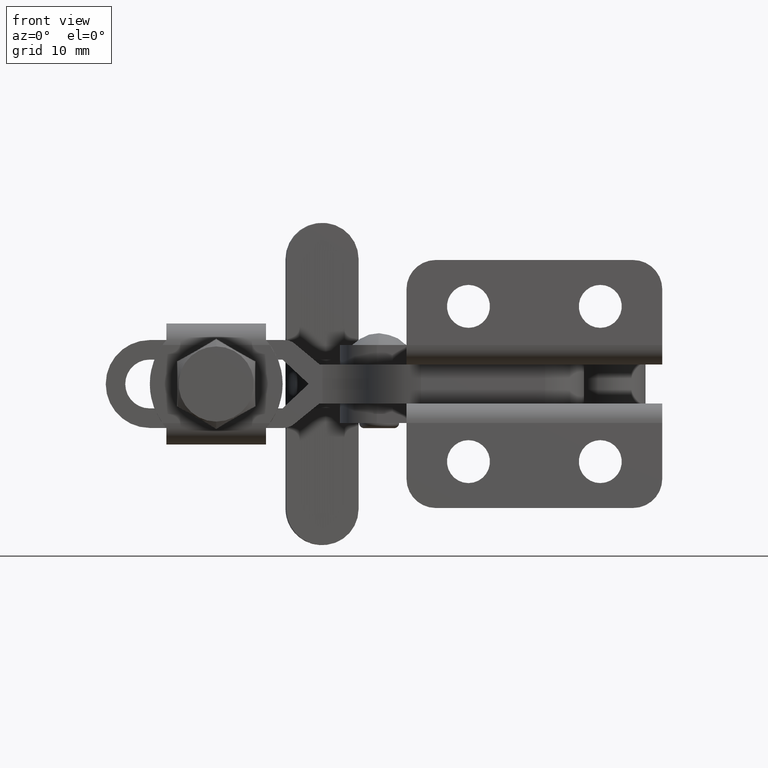
[diagram: clean part render]
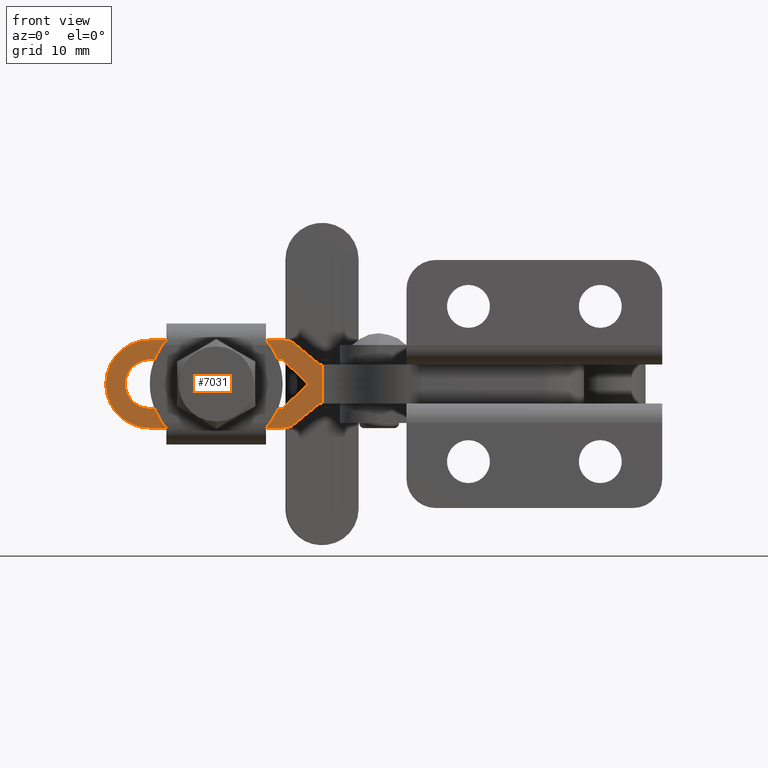
[diagram: same view with one face highlighted and labeled with its STEP entity id]
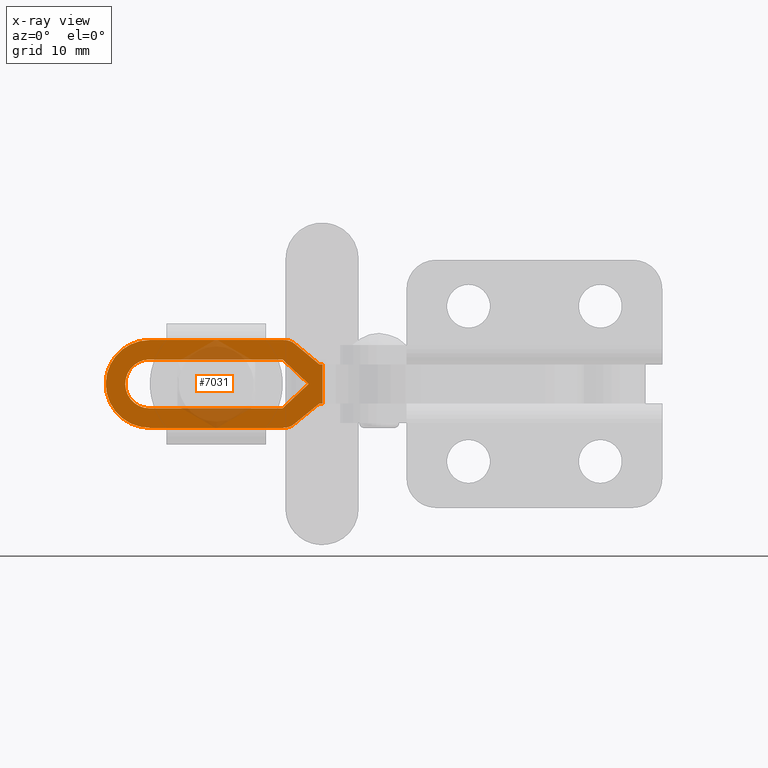
[diagram: x-ray of the same camera — body ghosted, the highlighted face saturated]
A machine part, front view. The second image highlights one B-rep face of the part: STEP entity #7031.
The next image is the same camera in x-ray: the body ghosted, the highlighted face saturated — about 15% of this face is hidden behind the body in this view.
In plain terms, the highlighted planar face has unit normal (-0, 1, -0).
Its self-contained STEP definition (entity closure, byte-faithful):
#75 = ORIENTED_EDGE ( 'NONE', *, *, #8553, .T. ) ;
#152 = CARTESIAN_POINT ( 'NONE',  ( -33.22022048219763200, 17.20000000000001400, -1.999999999999965800 ) ) ;
#219 = ORIENTED_EDGE ( 'NONE', *, *, #8522, .T. ) ;
#238 = VERTEX_POINT ( 'NONE', #7492 ) ;
#334 = DIRECTION ( 'NONE',  ( -0.7310552682428460600, -7.103958693483646300E-019, -0.6823182503600356800 ) ) ;
#339 = VERTEX_POINT ( 'NONE', #1470 ) ;
#422 = AXIS2_PLACEMENT_3D ( 'NONE', #9383, #6340, #1681 ) ;
#426 = ORIENTED_EDGE ( 'NONE', *, *, #2634, .F. ) ;
#460 = VECTOR ( 'NONE', #7899, 1000.000000000000000 ) ;
#756 = CARTESIAN_POINT ( 'NONE',  ( -49.49794774322469200, 17.20000000000001700, -6.499999999999946700 ) ) ;
#849 = AXIS2_PLACEMENT_3D ( 'NONE', #2750, #7277, #5228 ) ;
#970 = VERTEX_POINT ( 'NONE', #152 ) ;
#1071 = DIRECTION ( 'NONE',  ( -1.172110456741039200E-019, 1.000000000000000000, -9.155670635842134000E-019 ) ) ;
#1083 = CARTESIAN_POINT ( 'NONE',  ( -34.59318002014801200, 17.20000000000001400, 2.071026897436111900 ) ) ;
#1229 = DIRECTION ( 'NONE',  ( -1.172110456741039200E-019, 1.000000000000000000, -9.155670635842134000E-019 ) ) ;
#1428 = VERTEX_POINT ( 'NONE', #6812 ) ;
#1470 = CARTESIAN_POINT ( 'NONE',  ( -49.49794774322467800, 17.20000000000001400, 2.500000000000049300 ) ) ;
#1582 = CARTESIAN_POINT ( 'NONE',  ( -35.78054295658291300, 17.20000000000001400, 2.500000000000033800 ) ) ;
#1594 = LINE ( 'NONE', #7835, #5393 ) ;
#1638 = VERTEX_POINT ( 'NONE', #6879 ) ;
#1681 = DIRECTION ( 'NONE',  ( 1.000000000000000000, 1.172110456741039200E-019, -9.314502098102201200E-016 ) ) ;
#1686 = ORIENTED_EDGE ( 'NONE', *, *, #8056, .F. ) ;
#1728 = VECTOR ( 'NONE', #4244, 1000.000000000000000 ) ;
#1792 = EDGE_CURVE ( 'NONE', #3886, #6012, #3813, .T. ) ;
#1816 = CIRCLE ( 'NONE', #849, 4.499999999999997300 ) ;
#1873 = AXIS2_PLACEMENT_3D ( 'NONE', #3401, #1071, #3333 ) ;
#1918 = CARTESIAN_POINT ( 'NONE',  ( -51.99794774322468500, 17.20000000000001400, -1.999999999999946700 ) ) ;
#1956 = FACE_OUTER_BOUND ( 'NONE', #4525, .T. ) ;
#1970 = CARTESIAN_POINT ( 'NONE',  ( -49.49794774322468500, 17.20000000000001400, -4.499999999999949400 ) ) ;
#2004 = CARTESIAN_POINT ( 'NONE',  ( -49.49794774322468500, 17.20000000000001400, -4.499999999999949400 ) ) ;
#2031 = DIRECTION ( 'NONE',  ( -0.7756134828186288500, -6.688238573317455200E-019, -0.6312081473412368700 ) ) ;
#2224 = LINE ( 'NONE', #2498, #9710 ) ;
#2498 = CARTESIAN_POINT ( 'NONE',  ( -33.22022048219763200, 17.20000000000001400, -1.999999999999968900 ) ) ;
#2634 = EDGE_CURVE ( 'NONE', #3188, #2729, #7141, .T. ) ;
#2690 = CIRCLE ( 'NONE', #5531, 1.700000000000000200 ) ;
#2729 = VERTEX_POINT ( 'NONE', #8509 ) ;
#2750 = CARTESIAN_POINT ( 'NONE',  ( -49.49794774322468500, 17.20000000000001400, -1.999999999999948900 ) ) ;
#2767 = CARTESIAN_POINT ( 'NONE',  ( -49.49794774322468500, 17.20000000000001400, 0.5000000000000516300 ) ) ;
#2856 = EDGE_CURVE ( 'NONE', #5954, #5364, #1816, .T. ) ;
#2900 = CARTESIAN_POINT ( 'NONE',  ( -31.79794748430731500, 17.20000000000000600, 22.50000000000003900 ) ) ;
#2904 = EDGE_CURVE ( 'NONE', #238, #1428, #5734, .T. ) ;
#2980 = EDGE_CURVE ( 'NONE', #5908, #8131, #2690, .T. ) ;
#2984 = LINE ( 'NONE', #5378, #5033 ) ;
#3009 = CARTESIAN_POINT ( 'NONE',  ( -32.10794774322491200, 17.20000000000001400, 2.645453300864630800E-014 ) ) ;
#3026 = CARTESIAN_POINT ( 'NONE',  ( -35.72320158200935900, 17.20000000000001400, 0.8009673438212233700 ) ) ;
#3188 = VERTEX_POINT ( 'NONE', #8109 ) ;
#3235 = PLANE ( 'NONE',  #422 ) ;
#3241 = VECTOR ( 'NONE', #334, 1000.000000000000100 ) ;
#3275 = DIRECTION ( 'NONE',  ( -1.000000000000000000, -1.172110456741039200E-019, 1.059414974157814300E-015 ) ) ;
#3333 = DIRECTION ( 'NONE',  ( 1.000000000000000000, 0.0000000000000000000, -1.020425574104004000E-015 ) ) ;
#3374 = CIRCLE ( 'NONE', #4900, 4.499999999999997300 ) ;
#3375 = EDGE_CURVE ( 'NONE', #8131, #1638, #7489, .T. ) ;
#3401 = CARTESIAN_POINT ( 'NONE',  ( -35.78054295658292700, 17.20000000000001400, -4.799999999999960700 ) ) ;
#3428 = ORIENTED_EDGE ( 'NONE', *, *, #2904, .F. ) ;
#3672 = DIRECTION ( 'NONE',  ( -1.374065431884251400E-015, -9.155670635842132000E-019, -1.000000000000000000 ) ) ;
#3741 = CIRCLE ( 'NONE', #8651, 2.500000000000002200 ) ;
#3802 = VERTEX_POINT ( 'NONE', #7388 ) ;
#3813 = LINE ( 'NONE', #1970, #1728 ) ;
#3862 = CARTESIAN_POINT ( 'NONE',  ( -4.997947743224907300, 17.20000000000001400, -1.301042606982605300E-015 ) ) ;
#3886 = VERTEX_POINT ( 'NONE', #6962 ) ;
#3950 = DIRECTION ( 'NONE',  ( -1.000000000000000000, -1.172110456741039200E-019, 1.247603939863101600E-015 ) ) ;
#4063 = EDGE_CURVE ( 'NONE', #339, #5908, #4578, .T. ) ;
#4085 = ORIENTED_EDGE ( 'NONE', *, *, #5922, .F. ) ;
#4090 = CARTESIAN_POINT ( 'NONE',  ( -49.49794774322468500, 17.20000000000001400, -1.999999999999948900 ) ) ;
#4179 = CARTESIAN_POINT ( 'NONE',  ( -49.49794774322468500, 17.20000000000001400, -1.999999999999948900 ) ) ;
#4244 = DIRECTION ( 'NONE',  ( -1.000000000000000000, -1.172110456741039200E-019, 1.122791881750993200E-015 ) ) ;
#4263 = ORIENTED_EDGE ( 'NONE', *, *, #2980, .F. ) ;
#4388 = VERTEX_POINT ( 'NONE', #1918 ) ;
#4525 = EDGE_LOOP ( 'NONE', ( #9342, #4263, #7834, #1686, #5310, #4085, #3428, #4611, #8823, #426, #9538 ) ) ;
#4532 = VECTOR ( 'NONE', #8079, 1000.000000000000000 ) ;
#4578 = LINE ( 'NONE', #6981, #460 ) ;
#4611 = ORIENTED_EDGE ( 'NONE', *, *, #6843, .F. ) ;
#4761 = DIRECTION ( 'NONE',  ( -1.172110456741039200E-019, 1.000000000000000000, -9.155670635842134000E-019 ) ) ;
#4786 = VERTEX_POINT ( 'NONE', #4793 ) ;
#4793 = CARTESIAN_POINT ( 'NONE',  ( -35.89879191076907000, 17.20000000000001400, 0.5000000000000350800 ) ) ;
#4867 = DIRECTION ( 'NONE',  ( 1.000000000000000000, 0.0000000000000000000, -9.637352644315600700E-016 ) ) ;
#4900 = AXIS2_PLACEMENT_3D ( 'NONE', #4090, #9457, #4867 ) ;
#4972 = DIRECTION ( 'NONE',  ( 1.000000000000000000, 0.0000000000000000000, -8.673617379884027600E-016 ) ) ;
#5033 = VECTOR ( 'NONE', #3275, 1000.000000000000000 ) ;
#5113 = EDGE_CURVE ( 'NONE', #1638, #3188, #8655, .T. ) ;
#5196 = ORIENTED_EDGE ( 'NONE', *, *, #7048, .T. ) ;
#5228 = DIRECTION ( 'NONE',  ( 1.000000000000000000, 0.0000000000000000000, -9.637352644315600700E-016 ) ) ;
#5264 = VECTOR ( 'NONE', #2031, 1000.000000000000200 ) ;
#5308 = LINE ( 'NONE', #9613, #3241 ) ;
#5310 = ORIENTED_EDGE ( 'NONE', *, *, #2856, .F. ) ;
#5364 = VERTEX_POINT ( 'NONE', #5694 ) ;
#5370 = VECTOR ( 'NONE', #3672, 1000.000000000000000 ) ;
#5378 = CARTESIAN_POINT ( 'NONE',  ( -4.997947743224910900, 17.20000000000001400, -4.000000000000001800 ) ) ;
#5393 = VECTOR ( 'NONE', #3950, 1000.000000000000000 ) ;
#5430 = EDGE_CURVE ( 'NONE', #2729, #3802, #2984, .T. ) ;
#5454 = CARTESIAN_POINT ( 'NONE',  ( -49.49794774322468500, 17.20000000000001400, 0.5000000000000516300 ) ) ;
#5531 = AXIS2_PLACEMENT_3D ( 'NONE', #3026, #4761, #5570 ) ;
#5570 = DIRECTION ( 'NONE',  ( 1.000000000000000000, 0.0000000000000000000, -9.566489757225037600E-016 ) ) ;
#5574 = VECTOR ( 'NONE', #6222, 1000.000000000000000 ) ;
#5694 = CARTESIAN_POINT ( 'NONE',  ( -53.99794774322467800, 17.20000000000001400, -1.999999999999944500 ) ) ;
#5700 = CIRCLE ( 'NONE', #8899, 2.500000000000002200 ) ;
#5734 = CIRCLE ( 'NONE', #1873, 1.700000000000000200 ) ;
#5869 = FACE_BOUND ( 'NONE', #6829, .T. ) ;
#5908 = VERTEX_POINT ( 'NONE', #1582 ) ;
#5911 = CARTESIAN_POINT ( 'NONE',  ( -49.49794774322468500, 17.20000000000001400, -1.999999999999948900 ) ) ;
#5919 = VERTEX_POINT ( 'NONE', #2767 ) ;
#5922 = EDGE_CURVE ( 'NONE', #1428, #5954, #1594, .T. ) ;
#5954 = VERTEX_POINT ( 'NONE', #756 ) ;
#6012 = VERTEX_POINT ( 'NONE', #2004 ) ;
#6222 = DIRECTION ( 'NONE',  ( 1.000000000000000000, 1.172110456741039200E-019, -1.218462717721384100E-015 ) ) ;
#6340 = DIRECTION ( 'NONE',  ( -1.172110456741047700E-019, 1.000000000000000000, -9.155670635842134000E-019 ) ) ;
#6395 = DIRECTION ( 'NONE',  ( 0.7682212795973505400, -4.960877314625601000E-019, -0.6401843996645103500 ) ) ;
#6660 = DIRECTION ( 'NONE',  ( 1.000000000000000000, 0.0000000000000000000, -8.673617379884027600E-016 ) ) ;
#6812 = CARTESIAN_POINT ( 'NONE',  ( -35.78054295658299800, 17.20000000000001400, -6.499999999999964500 ) ) ;
#6829 = EDGE_LOOP ( 'NONE', ( #8360, #219, #7637, #6841, #5196, #75 ) ) ;
#6841 = ORIENTED_EDGE ( 'NONE', *, *, #7952, .T. ) ;
#6843 = EDGE_CURVE ( 'NONE', #3802, #238, #9327, .T. ) ;
#6879 = CARTESIAN_POINT ( 'NONE',  ( -32.10794774322491200, 17.20000000000001400, 2.515349040166370300E-014 ) ) ;
#6962 = CARTESIAN_POINT ( 'NONE',  ( -35.89879191076887800, 17.20000000000001400, -4.499999999999965400 ) ) ;
#6981 = CARTESIAN_POINT ( 'NONE',  ( -49.49794774322467800, 17.20000000000001400, 2.500000000000049300 ) ) ;
#7031 = ADVANCED_FACE ( 'NONE', ( #5869, #1956 ), #3235, .F. ) ;
#7048 = EDGE_CURVE ( 'NONE', #4786, #970, #2224, .T. ) ;
#7141 = LINE ( 'NONE', #2900, #5370 ) ;
#7277 = DIRECTION ( 'NONE',  ( -1.172110456741039200E-019, 1.000000000000000000, -9.155670635842134000E-019 ) ) ;
#7388 = CARTESIAN_POINT ( 'NONE',  ( -32.11046554952866900, 17.20000000000001400, -3.999999999999970700 ) ) ;
#7489 = LINE ( 'NONE', #3009, #9299 ) ;
#7492 = CARTESIAN_POINT ( 'NONE',  ( -34.62060193097101300, 17.20000000000001400, -6.042793956012931600 ) ) ;
#7637 = ORIENTED_EDGE ( 'NONE', *, *, #7696, .T. ) ;
#7696 = EDGE_CURVE ( 'NONE', #4388, #5919, #5700, .T. ) ;
#7834 = ORIENTED_EDGE ( 'NONE', *, *, #4063, .F. ) ;
#7835 = CARTESIAN_POINT ( 'NONE',  ( -49.49794774322469200, 17.20000000000001400, -6.499999999999946700 ) ) ;
#7899 = DIRECTION ( 'NONE',  ( 1.000000000000000000, 1.172110456741039200E-019, -1.121142447841947800E-015 ) ) ;
#7952 = EDGE_CURVE ( 'NONE', #5919, #4786, #8080, .T. ) ;
#8056 = EDGE_CURVE ( 'NONE', #5364, #339, #3374, .T. ) ;
#8079 = DIRECTION ( 'NONE',  ( 1.000000000000000000, 1.172110456741039200E-019, -1.059426858720349800E-015 ) ) ;
#8080 = LINE ( 'NONE', #5454, #5574 ) ;
#8109 = CARTESIAN_POINT ( 'NONE',  ( -31.79794748430735000, 17.20000000000000600, 2.905661822261151900E-014 ) ) ;
#8131 = VERTEX_POINT ( 'NONE', #1083 ) ;
#8360 = ORIENTED_EDGE ( 'NONE', *, *, #1792, .T. ) ;
#8509 = CARTESIAN_POINT ( 'NONE',  ( -31.79794748430735800, 17.20000000000000600, -3.999999999999974200 ) ) ;
#8522 = EDGE_CURVE ( 'NONE', #6012, #4388, #3741, .T. ) ;
#8553 = EDGE_CURVE ( 'NONE', #970, #3886, #5308, .T. ) ;
#8651 = AXIS2_PLACEMENT_3D ( 'NONE', #4179, #9570, #4972 ) ;
#8655 = LINE ( 'NONE', #3862, #4532 ) ;
#8669 = DIRECTION ( 'NONE',  ( 0.7310552682428707000, -5.390203644757240900E-019, -0.6823182503600094800 ) ) ;
#8823 = ORIENTED_EDGE ( 'NONE', *, *, #5430, .F. ) ;
#8899 = AXIS2_PLACEMENT_3D ( 'NONE', #5911, #1229, #6660 ) ;
#9203 = CARTESIAN_POINT ( 'NONE',  ( -32.11046554952866900, 17.20000000000001400, -3.999999999999972500 ) ) ;
#9299 = VECTOR ( 'NONE', #6395, 1000.000000000000000 ) ;
#9327 = LINE ( 'NONE', #9203, #5264 ) ;
#9342 = ORIENTED_EDGE ( 'NONE', *, *, #3375, .F. ) ;
#9383 = CARTESIAN_POINT ( 'NONE',  ( -31.79794748430731500, 17.20000000000001400, 22.50000000000003900 ) ) ;
#9457 = DIRECTION ( 'NONE',  ( -1.172110456741039200E-019, 1.000000000000000000, -9.155670635842134000E-019 ) ) ;
#9538 = ORIENTED_EDGE ( 'NONE', *, *, #5113, .F. ) ;
#9570 = DIRECTION ( 'NONE',  ( -1.172110456741039200E-019, 1.000000000000000000, -9.155670635842134000E-019 ) ) ;
#9613 = CARTESIAN_POINT ( 'NONE',  ( -33.22022048219763200, 17.20000000000001400, -1.999999999999967100 ) ) ;
#9710 = VECTOR ( 'NONE', #8669, 1000.000000000000100 ) ;